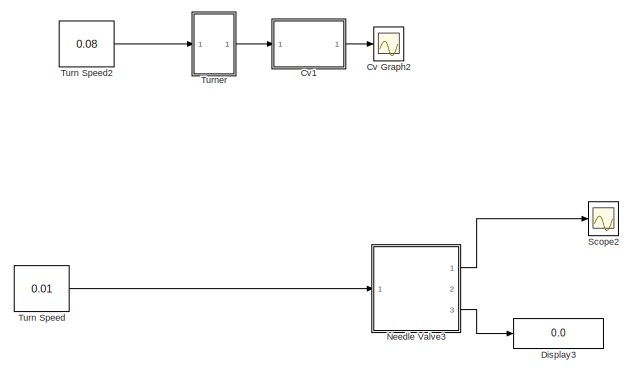
[diagram: root canvas - part 1/3, top center region]
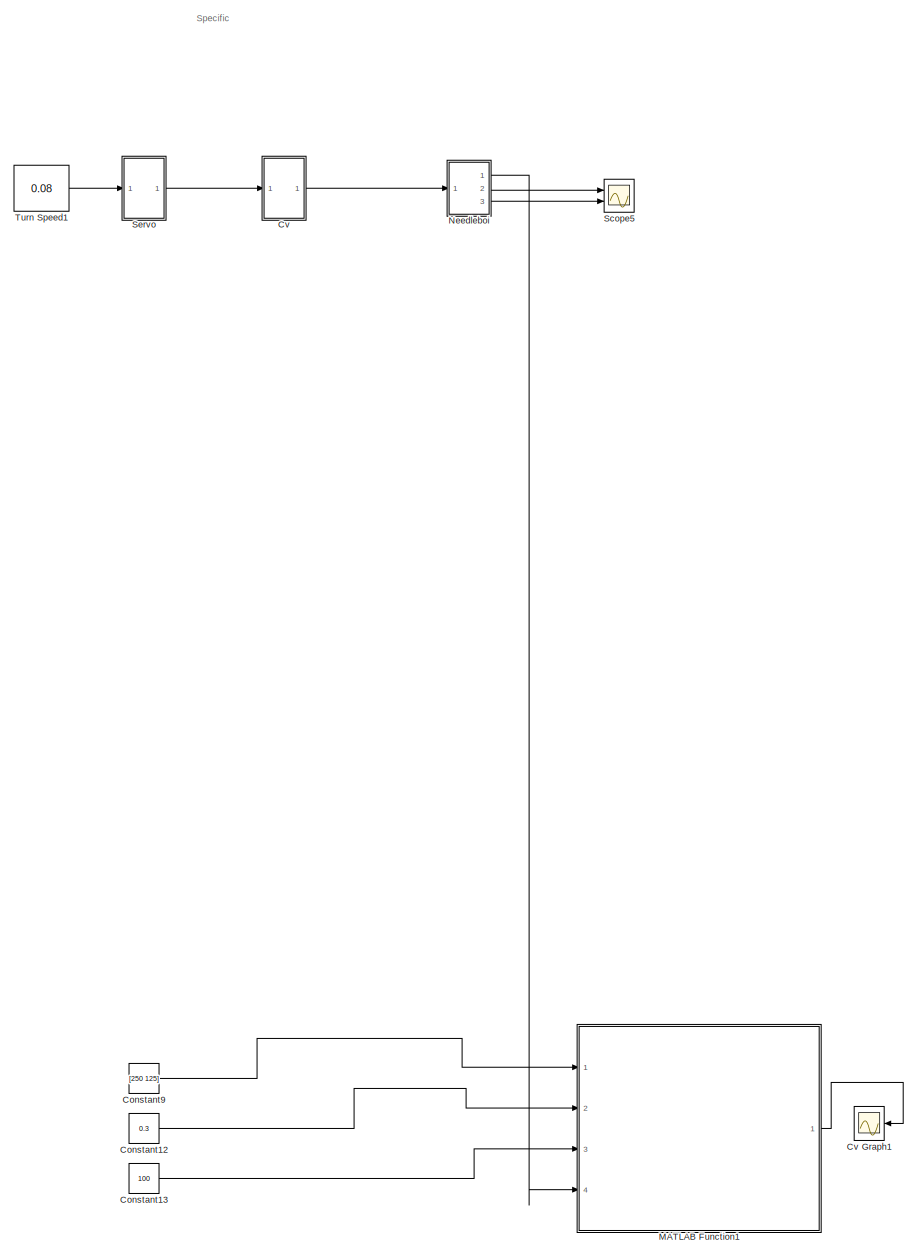
[diagram: root canvas - part 2/3, bottom left region]
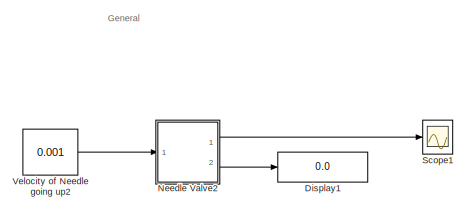
[diagram: root canvas - part 3/3, middle right region]
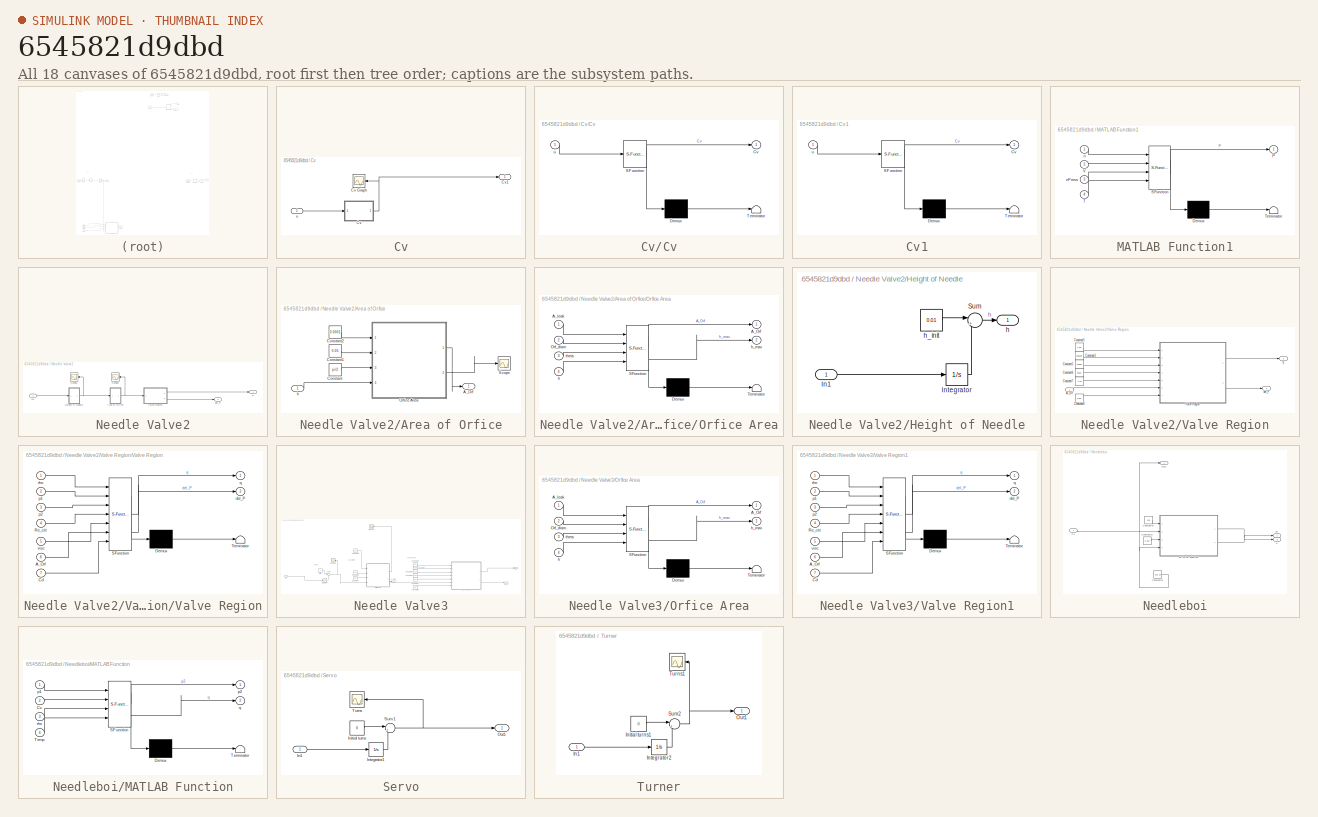
[diagram: thumbnail index - all 18 canvases of the model, root first then tree order]
MODEL slx_6545821d9dbd
KIND model
CONFIG AbsTol = auto
CONFIG EnableMultiTasking = off
CONFIG FixedStep = auto
CONFIG MaxStep = auto
CONFIG MinStep = auto
CONFIG RelTol = 1e-3
CONFIG SampleTimeConstraint = Unconstrained
CONFIG Solver = VariableStepAuto
CONFIG SolverName = VariableStepAuto
CONFIG StartTime = 0.0
CONFIG StopTime = 100
BLOCK [Constant] Constant12
  Commented = on
  Value = 0.3
BLOCK [Constant] Constant13
  Commented = on
  Value = 100
BLOCK [Constant] Constant9
  Commented = on
  Value = [250 125]
BLOCK [SubSystem] Cv
  Ports = [1, 1]
  RequestExecContextInheritance = off
BLOCK [Scope] Cv Graph1
  Commented = on
  Floating = off
  NumInputPorts = 1
  Ports = [1]
  ScopeSpecificationString = Simulink.scopes.TimeScopeBlockCfg('CurrentConfiguration', extmgr.ConfigurationSet(extmgr.Configuration('Core','General UI',true),extmgr.Configuration('Core','Source UI',true),extmgr.Configuration('Sources','WiredSimulink',true,'DataLoggingVariableName','ScopeData5'),extmgr.Configuration('Visuals','Time Domain',true,'SerializedDisplays',{struct('MinYLimReal','-0.99962','MaxYLimReal','8.99656','YLab...<+1363ch>
BLOCK [Scope] Cv Graph2
  Commented = on
  Floating = off
  NumInputPorts = 1
  Ports = [1]
  ScopeSpecificationString = Simulink.scopes.TimeScopeBlockCfg('CurrentConfiguration', extmgr.ConfigurationSet(extmgr.Configuration('Core','General UI',true),extmgr.Configuration('Core','Source UI',true),extmgr.Configuration('Sources','WiredSimulink',true,'DataLoggingVariableName','ScopeData7'),extmgr.Configuration('Visuals','Time Domain',true,'SerializedDisplays',{struct('MinYLimReal','-0.99962','MaxYLimReal','8.99656','YLab...<+1363ch>
BLOCK [SubSystem] Cv/Cv
  ErrorFcn = Stateflow.Translate.translate
  PermitHierarchicalResolution = ExplicitOnly
  Ports = [1, 1]
  RequestExecContextInheritance = off
  SFBlockType = MATLAB Function
  TreatAsAtomicUnit = on
BLOCK [Scope] Cv/Cv Graph
  Floating = off
  NumInputPorts = 1
  Ports = [1]
  ScopeSpecificationString = Simulink.scopes.TimeScopeBlockCfg('CurrentConfiguration', extmgr.ConfigurationSet(extmgr.Configuration('Core','General UI',true),extmgr.Configuration('Core','Source UI',true),extmgr.Configuration('Sources','WiredSimulink',true,'DataLoggingVariableName','ScopeData3'),extmgr.Configuration('Visuals','Time Domain',true,'SerializedDisplays',{struct('MinYLimReal','-0.096','MaxYLimReal','0.86398','YLabel...<+1357ch>
BLOCK [Demux] Cv/Cv/ Demux 
  Outputs = 1
  Ports = [1, 1]
BLOCK [S-Function] Cv/Cv/ SFunction 
  EnableBusSupport = on
  FunctionName = sf_sfun
  PortCounts = [1 2]
  Ports = [1, 2]
  SFcnIsStateOwnerBlock = off
  SFunctionDeploymentMode = off
  Tag = Stateflow S-Function 9
BLOCK [Terminator] Cv/Cv/ Terminator 
BLOCK [Outport] Cv/Cv/Cv
BLOCK [Inport] Cv/Cv/u
BLOCK [Outport] Cv/Cv1
BLOCK [Inport] Cv/u
BLOCK [SubSystem] Cv1
  Commented = on
  ErrorFcn = Stateflow.Translate.translate
  PermitHierarchicalResolution = ExplicitOnly
  Ports = [1, 1]
  RequestExecContextInheritance = off
  SFBlockType = MATLAB Function
  TreatAsAtomicUnit = on
BLOCK [Demux] Cv1/ Demux 
  Outputs = 1
  Ports = [1, 1]
BLOCK [S-Function] Cv1/ SFunction 
  EnableBusSupport = on
  FunctionName = sf_sfun
  PortCounts = [1 2]
  Ports = [1, 2]
  SFcnIsStateOwnerBlock = off
  SFunctionDeploymentMode = off
  Tag = Stateflow S-Function 1
BLOCK [Terminator] Cv1/ Terminator 
BLOCK [Outport] Cv1/Cv
BLOCK [Inport] Cv1/u
BLOCK [Display] Display1
  Decimation = 1
  Ports = [1]
BLOCK [Display] Display3
  Commented = on
  Decimation = 1
  Ports = [1]
BLOCK [SubSystem] MATLAB Function1
  Commented = on
  ErrorFcn = Stateflow.Translate.translate
  PermitHierarchicalResolution = ExplicitOnly
  Ports = [4, 1]
  RequestExecContextInheritance = off
  SFBlockType = MATLAB Function
  TreatAsAtomicUnit = on
BLOCK [Demux] MATLAB Function1/ Demux 
  Outputs = 1
  Ports = [1, 1]
BLOCK [S-Function] MATLAB Function1/ SFunction 
  EnableBusSupport = on
  FunctionName = sf_sfun
  PortCounts = [4 2]
  Ports = [4, 2]
  SFcnIsStateOwnerBlock = off
  SFunctionDeploymentMode = off
  Tag = Stateflow S-Function 11
BLOCK [Terminator] MATLAB Function1/ Terminator 
BLOCK [Outport] MATLAB Function1/P
BLOCK [Inport] MATLAB Function1/T
  Port = 4
BLOCK [Inport] MATLAB Function1/V
  Port = 2
BLOCK [Inport] MATLAB Function1/n
BLOCK [Inport] MATLAB Function1/nPress
  Port = 3
BLOCK [SubSystem] Needle Valve2
  Ports = [1, 2]
  RequestExecContextInheritance = off
BLOCK [SubSystem] Needle Valve2/Area of Orfice
  Ports = [1, 1]
  RequestExecContextInheritance = off
BLOCK [Outport] Needle Valve2/Area of Orfice/A_Orf
BLOCK [Constant] Needle Valve2/Area of Orfice/Constant
  Value = pi/2
BLOCK [Constant] Needle Valve2/Area of Orfice/Constant1
  Value = 0.05
BLOCK [Constant] Needle Valve2/Area of Orfice/Constant2
  Value = 0.0001
BLOCK [SubSystem] Needle Valve2/Area of Orfice/Orfice Area
  ErrorFcn = Stateflow.Translate.translate
  PermitHierarchicalResolution = ExplicitOnly
  Ports = [4, 2]
  RequestExecContextInheritance = off
  SFBlockType = MATLAB Function
  TreatAsAtomicUnit = on
BLOCK [Demux] Needle Valve2/Area of Orfice/Orfice Area/ Demux 
  Outputs = 1
  Ports = [1, 1]
BLOCK [S-Function] Needle Valve2/Area of Orfice/Orfice Area/ SFunction 
  EnableBusSupport = on
  FunctionName = sf_sfun
  PortCounts = [4 3]
  Ports = [4, 3]
  SFcnIsStateOwnerBlock = off
  SFunctionDeploymentMode = off
  Tag = Stateflow S-Function 5
BLOCK [Terminator] Needle Valve2/Area of Orfice/Orfice Area/ Terminator 
BLOCK [Outport] Needle Valve2/Area of Orfice/Orfice Area/A_Orf
BLOCK [Inport] Needle Valve2/Area of Orfice/Orfice Area/A_leak
BLOCK [Inport] Needle Valve2/Area of Orfice/Orfice Area/Orf_diam
  Port = 2
BLOCK [Inport] Needle Valve2/Area of Orfice/Orfice Area/h
  Port = 4
BLOCK [Outport] Needle Valve2/Area of Orfice/Orfice Area/h_max
  Port = 2
BLOCK [Inport] Needle Valve2/Area of Orfice/Orfice Area/theta
  Port = 3
BLOCK [Scope] Needle Valve2/Area of Orfice/Scope
  Floating = off
  NumInputPorts = 1
  Ports = [1]
  ScopeSpecificationString = Simulink.scopes.TimeScopeBlockCfg('CurrentConfiguration', extmgr.ConfigurationSet(extmgr.Configuration('Core','General UI',true),extmgr.Configuration('Core','Source UI',true),extmgr.Configuration('Sources','WiredSimulink',true,'DataLoggingVariableName','ScopeData1'),extmgr.Configuration('Visuals','Time Domain',true),extmgr.Configuration('Tools','Plot Navigation',true),extmgr.Configuration('Tools',...<+40ch>
BLOCK [Inport] Needle Valve2/Area of Orfice/h
BLOCK [SubSystem] Needle Valve2/Height of Needle
  Ports = [1, 1]
  RequestExecContextInheritance = off
BLOCK [Inport] Needle Valve2/Height of Needle/In1
BLOCK [Integrator] Needle Valve2/Height of Needle/Integrator
  Ports = [1, 1]
BLOCK [Sum] Needle Valve2/Height of Needle/Sum
  Inputs = |++
  Ports = [2, 1]
BLOCK [Outport] Needle Valve2/Height of Needle/h
BLOCK [Constant] Needle Valve2/Height of Needle/h_init
  Value = 0.01
BLOCK [Inport] Needle Valve2/In1
BLOCK [Scope] Needle Valve2/Scope1
  Floating = off
  NumInputPorts = 1
  Ports = [1]
  ScopeSpecificationString = Simulink.scopes.TimeScopeBlockCfg('CurrentConfiguration', extmgr.ConfigurationSet(extmgr.Configuration('Core','General UI',true),extmgr.Configuration('Core','Source UI',true),extmgr.Configuration('Sources','WiredSimulink',true,'DataLoggingVariableName','ScopeData1'),extmgr.Configuration('Visuals','Time Domain',true,'SerializedDisplays',{struct('MinYLimReal','-0.0025','MaxYLimReal','0.1225','YLabel...<+1369ch>
BLOCK [Scope] Needle Valve2/Scope2
  Floating = off
  NumInputPorts = 1
  Ports = [1]
  ScopeSpecificationString = Simulink.scopes.TimeScopeBlockCfg('CurrentConfiguration', extmgr.ConfigurationSet(extmgr.Configuration('Core','General UI',true),extmgr.Configuration('Core','Source UI',true),extmgr.Configuration('Sources','WiredSimulink',true,'DataLoggingVariableName','ScopeData2'),extmgr.Configuration('Visuals','Time Domain',true,'SerializedDisplays',{struct('MinYLimReal','0.00098','MaxYLimReal','0.00218','YLabe...<+1371ch>
BLOCK [SubSystem] Needle Valve2/Valve Region
  Ports = [1, 2]
  RequestExecContextInheritance = off
BLOCK [Inport] Needle Valve2/Valve Region/A_Orf
BLOCK [Constant] Needle Valve2/Valve Region/Constant3
  Value = 1.98
BLOCK [Constant] Needle Valve2/Valve Region/Constant4
  Value = 100000
BLOCK [Constant] Needle Valve2/Valve Region/Constant5
  Value = 20000
BLOCK [Constant] Needle Valve2/Valve Region/Constant6
  Value = 3500
BLOCK [Constant] Needle Valve2/Valve Region/Constant7
  Value = 1.61
BLOCK [Constant] Needle Valve2/Valve Region/Constant8
  Value = 0.65
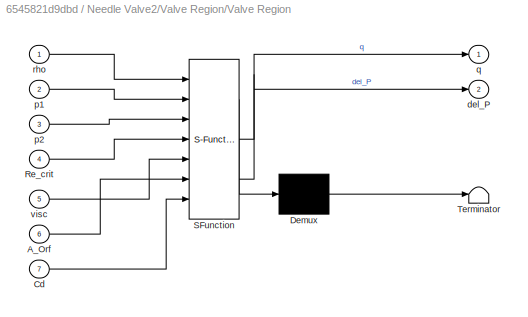
BLOCK [SubSystem] Needle Valve2/Valve Region/Valve Region
  ErrorFcn = Stateflow.Translate.translate
  PermitHierarchicalResolution = ExplicitOnly
  Ports = [7, 2]
  RequestExecContextInheritance = off
  SFBlockType = MATLAB Function
  TreatAsAtomicUnit = on
BLOCK [Demux] Needle Valve2/Valve Region/Valve Region/ Demux 
  Outputs = 1
  Ports = [1, 1]
BLOCK [S-Function] Needle Valve2/Valve Region/Valve Region/ SFunction 
  EnableBusSupport = on
  FunctionName = sf_sfun
  PortCounts = [7 3]
  Ports = [7, 3]
  SFcnIsStateOwnerBlock = off
  SFunctionDeploymentMode = off
  Tag = Stateflow S-Function 6
BLOCK [Terminator] Needle Valve2/Valve Region/Valve Region/ Terminator 
BLOCK [Inport] Needle Valve2/Valve Region/Valve Region/A_Orf
  Port = 6
BLOCK [Inport] Needle Valve2/Valve Region/Valve Region/Cd
  Port = 7
BLOCK [Inport] Needle Valve2/Valve Region/Valve Region/Re_crit
  Port = 4
BLOCK [Outport] Needle Valve2/Valve Region/Valve Region/del_P
  Port = 2
BLOCK [Inport] Needle Valve2/Valve Region/Valve Region/p1
  Port = 2
BLOCK [Inport] Needle Valve2/Valve Region/Valve Region/p2
  Port = 3
BLOCK [Outport] Needle Valve2/Valve Region/Valve Region/q
BLOCK [Inport] Needle Valve2/Valve Region/Valve Region/rho
BLOCK [Inport] Needle Valve2/Valve Region/Valve Region/visc
  Port = 5
BLOCK [Outport] Needle Valve2/Valve Region/del_P
  Port = 2
BLOCK [Outport] Needle Valve2/Valve Region/q
BLOCK [Outport] Needle Valve2/del_P
  Port = 2
BLOCK [Outport] Needle Valve2/q
BLOCK [SubSystem] Needle Valve3
  Ports = [1, 3]
  RequestExecContextInheritance = off
BLOCK [Constant] Needle Valve3/Constant
  Commented = on
  Value = pi/2
BLOCK [Constant] Needle Valve3/Constant1
  Commented = on
  Value = 0.05
BLOCK [Constant] Needle Valve3/Constant2
  Commented = on
  Value = 0.0001
BLOCK [Constant] Needle Valve3/Constant3
  Commented = on
  Value = 1.98
BLOCK [Constant] Needle Valve3/Constant4
  Commented = on
  Value = 100000
BLOCK [Constant] Needle Valve3/Constant5
  Commented = on
  Value = 20000
BLOCK [Constant] Needle Valve3/Constant6
  Commented = on
  Value = 3500
BLOCK [Constant] Needle Valve3/Constant7
  Commented = on
  Value = 1.61
BLOCK [Constant] Needle Valve3/Constant8
  Commented = on
  Value = 0.65
BLOCK [Inport] Needle Valve3/In1
BLOCK [Constant] Needle Valve3/Initial 
  Commented = on
  Value = 0
BLOCK [Integrator] Needle Valve3/Integrator
  Commented = on
  Ports = [1, 1]
BLOCK [SubSystem] Needle Valve3/Orfice Area
  Commented = on
  ErrorFcn = Stateflow.Translate.translate
  PermitHierarchicalResolution = ExplicitOnly
  Ports = [4, 2]
  RequestExecContextInheritance = off
  SFBlockType = MATLAB Function
  TreatAsAtomicUnit = on
BLOCK [Demux] Needle Valve3/Orfice Area/ Demux 
  Outputs = 1
  Ports = [1, 1]
BLOCK [S-Function] Needle Valve3/Orfice Area/ SFunction 
  EnableBusSupport = on
  FunctionName = sf_sfun
  PortCounts = [4 3]
  Ports = [4, 3]
  SFcnIsStateOwnerBlock = off
  SFunctionDeploymentMode = off
  Tag = Stateflow S-Function 7
BLOCK [Terminator] Needle Valve3/Orfice Area/ Terminator 
BLOCK [Outport] Needle Valve3/Orfice Area/A_Orf
BLOCK [Inport] Needle Valve3/Orfice Area/A_leak
BLOCK [Inport] Needle Valve3/Orfice Area/Orf_diam
  Port = 2
BLOCK [Inport] Needle Valve3/Orfice Area/h
  Port = 4
BLOCK [Outport] Needle Valve3/Orfice Area/h_max
  Port = 2
BLOCK [Inport] Needle Valve3/Orfice Area/theta
  Port = 3
BLOCK [Scope] Needle Valve3/Scope3
  Commented = on
  Floating = off
  NumInputPorts = 1
  Ports = [1]
  ScopeSpecificationString = Simulink.scopes.TimeScopeBlockCfg('CurrentConfiguration', extmgr.ConfigurationSet(extmgr.Configuration('Core','General UI',true),extmgr.Configuration('Core','Source UI',true),extmgr.Configuration('Sources','WiredSimulink',true,'DataLoggingVariableName','ScopeData1'),extmgr.Configuration('Visuals','Time Domain',true,'SerializedDisplays',{struct('MinYLimReal','0.00088','MaxYLimReal','0.00213','YLabe...<+1358ch>
BLOCK [Scope] Needle Valve3/Scope4
  Commented = on
  Floating = off
  NumInputPorts = 1
  Ports = [1]
  ScopeSpecificationString = Simulink.scopes.TimeScopeBlockCfg('CurrentConfiguration', extmgr.ConfigurationSet(extmgr.Configuration('Core','General UI',true),extmgr.Configuration('Core','Source UI',true),extmgr.Configuration('Sources','WiredSimulink',true,'DataLoggingVariableName','ScopeData2'),extmgr.Configuration('Visuals','Time Domain',true,'SerializedDisplays',{struct('MinYLimReal','0.0002','MaxYLimReal','0.00033','YLabel...<+1364ch>
BLOCK [Sum] Needle Valve3/Sum
  Commented = on
  Inputs = |++
  Ports = [2, 1]
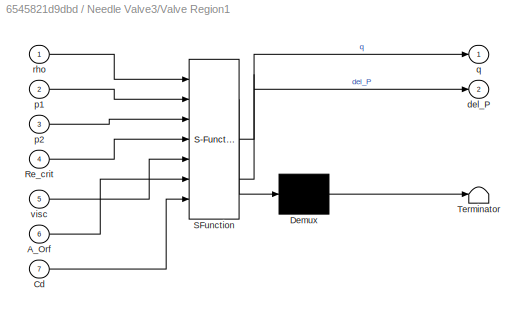
BLOCK [SubSystem] Needle Valve3/Valve Region1
  Commented = on
  ErrorFcn = Stateflow.Translate.translate
  PermitHierarchicalResolution = ExplicitOnly
  Ports = [7, 2]
  RequestExecContextInheritance = off
  SFBlockType = MATLAB Function
  TreatAsAtomicUnit = on
BLOCK [Demux] Needle Valve3/Valve Region1/ Demux 
  Outputs = 1
  Ports = [1, 1]
BLOCK [S-Function] Needle Valve3/Valve Region1/ SFunction 
  EnableBusSupport = on
  FunctionName = sf_sfun
  PortCounts = [7 3]
  Ports = [7, 3]
  SFcnIsStateOwnerBlock = off
  SFunctionDeploymentMode = off
  Tag = Stateflow S-Function 8
BLOCK [Terminator] Needle Valve3/Valve Region1/ Terminator 
BLOCK [Inport] Needle Valve3/Valve Region1/A_Orf
  Port = 6
BLOCK [Inport] Needle Valve3/Valve Region1/Cd
  Port = 7
BLOCK [Inport] Needle Valve3/Valve Region1/Re_crit
  Port = 4
BLOCK [Outport] Needle Valve3/Valve Region1/del_P
  Port = 2
BLOCK [Inport] Needle Valve3/Valve Region1/p1
  Port = 2
BLOCK [Inport] Needle Valve3/Valve Region1/p2
  Port = 3
BLOCK [Outport] Needle Valve3/Valve Region1/q
BLOCK [Inport] Needle Valve3/Valve Region1/rho
BLOCK [Inport] Needle Valve3/Valve Region1/visc
  Port = 5
BLOCK [Outport] Needle Valve3/del_P
  Port = 3
BLOCK [Outport] Needle Valve3/h_max
  Port = 2
BLOCK [Outport] Needle Valve3/q
BLOCK [SubSystem] Needleboi
  Ports = [1, 3]
  RequestExecContextInheritance = off
BLOCK [Constant] Needleboi/Constant10
  Value = 0.967
BLOCK [Constant] Needleboi/Constant11
  Value = 310.15
BLOCK [Constant] Needleboi/Constant14
  Value = 100
BLOCK [Inport] Needleboi/Cv
BLOCK [SubSystem] Needleboi/MATLAB Function
  ErrorFcn = Stateflow.Translate.translate
  PermitHierarchicalResolution = ExplicitOnly
  Ports = [4, 2]
  RequestExecContextInheritance = off
  SFBlockType = MATLAB Function
  TreatAsAtomicUnit = on
BLOCK [Demux] Needleboi/MATLAB Function/ Demux 
  Outputs = 1
  Ports = [1, 1]
BLOCK [S-Function] Needleboi/MATLAB Function/ SFunction 
  EnableBusSupport = on
  FunctionName = sf_sfun
  PortCounts = [4 3]
  Ports = [4, 3]
  SFcnIsStateOwnerBlock = off
  SFunctionDeploymentMode = off
  Tag = Stateflow S-Function 10
BLOCK [Terminator] Needleboi/MATLAB Function/ Terminator 
BLOCK [Inport] Needleboi/MATLAB Function/Cv
  Port = 2
BLOCK [Inport] Needleboi/MATLAB Function/Temp
  Port = 4
BLOCK [Inport] Needleboi/MATLAB Function/p1
BLOCK [Outport] Needleboi/MATLAB Function/p2
BLOCK [Outport] Needleboi/MATLAB Function/q
  Port = 2
BLOCK [Inport] Needleboi/MATLAB Function/rho
  Port = 3
BLOCK [Outport] Needleboi/Out1
BLOCK [Outport] Needleboi/p2
  Port = 2
BLOCK [Outport] Needleboi/q
  Port = 3
BLOCK [Scope] Scope1
  Floating = off
  NumInputPorts = 1
  Ports = [1]
  ScopeSpecificationString = Simulink.scopes.TimeScopeBlockCfg('CurrentConfiguration', extmgr.ConfigurationSet(extmgr.Configuration('Core','General UI',true),extmgr.Configuration('Core','Source UI',true),extmgr.Configuration('Sources','WiredSimulink',true,'DataLoggingVariableName','ScopeData2'),extmgr.Configuration('Visuals','Time Domain',true,'SerializedDisplays',{struct('MinYLimReal','0.0002','MaxYLimReal','0.00069','YLabel...<+1412ch>
BLOCK [Scope] Scope2
  Commented = on
  Floating = off
  NumInputPorts = 1
  Ports = [1]
  ScopeSpecificationString = Simulink.scopes.TimeScopeBlockCfg('CurrentConfiguration', extmgr.ConfigurationSet(extmgr.Configuration('Core','General UI',true),extmgr.Configuration('Core','Source UI',true),extmgr.Configuration('Sources','WiredSimulink',true,'DataLoggingVariableName','ScopeData1'),extmgr.Configuration('Visuals','Time Domain',true,'SerializedDisplays',{struct('MinYLimReal','0.0002','MaxYLimReal','0.00069','YLabel...<+1412ch>
BLOCK [Scope] Scope5
  Floating = off
  NumInputPorts = 2
  Ports = [2]
  ScopeSpecificationString = Simulink.scopes.TimeScopeBlockCfg('CurrentConfiguration', extmgr.ConfigurationSet(extmgr.Configuration('Core','General UI',true),extmgr.Configuration('Core','Source UI',true),extmgr.Configuration('Sources','WiredSimulink',true,'DataLoggingVariableName','ScopeData4'),extmgr.Configuration('Visuals','Time Domain',true,'SerializedDisplays',{struct('MinYLimReal','90.00000','MaxYLimReal','110.00000','YL...<+2047ch>
BLOCK [SubSystem] Servo
  Ports = [1, 1]
  RequestExecContextInheritance = off
BLOCK [Inport] Servo/In1
BLOCK [Constant] Servo/Initial turns
  Value = 0
BLOCK [Integrator] Servo/Integrator1
  Ports = [1, 1]
BLOCK [Outport] Servo/Out1
BLOCK [Sum] Servo/Sum1
  Inputs = |++
  Ports = [2, 1]
BLOCK [Scope] Servo/Turns
  Floating = off
  NumInputPorts = 1
  Ports = [1]
  ScopeSpecificationString = Simulink.scopes.TimeScopeBlockCfg('CurrentConfiguration', extmgr.ConfigurationSet(extmgr.Configuration('Core','General UI',true),extmgr.Configuration('Core','Source UI',true),extmgr.Configuration('Sources','WiredSimulink',true,'DataLoggingVariableName','ScopeData2'),extmgr.Configuration('Visuals','Time Domain',true,'SerializedDisplays',{struct('MinYLimReal','-0.99962','MaxYLimReal','8.99656','YLab...<+1363ch>
BLOCK [Constant] Turn Speed
  Commented = on
  Value = 0.01
  VectorParams1D = off
BLOCK [Constant] Turn Speed1
  Value = 0.08
  VectorParams1D = off
BLOCK [Constant] Turn Speed2
  Commented = on
  Value = 0.08
  VectorParams1D = off
BLOCK [SubSystem] Turner
  Ports = [1, 1]
  RequestExecContextInheritance = off
BLOCK [Inport] Turner/In1
BLOCK [Constant] Turner/Initial turns1
  Commented = on
  Value = 0
BLOCK [Integrator] Turner/Integrator2
  Commented = on
  Ports = [1, 1]
BLOCK [Outport] Turner/Out1
BLOCK [Sum] Turner/Sum2
  Commented = on
  Inputs = |++
  Ports = [2, 1]
BLOCK [Scope] Turner/Turns1
  Commented = on
  Floating = off
  NumInputPorts = 1
  Ports = [1]
  ScopeSpecificationString = Simulink.scopes.TimeScopeBlockCfg('CurrentConfiguration', extmgr.ConfigurationSet(extmgr.Configuration('Core','General UI',true),extmgr.Configuration('Core','Source UI',true),extmgr.Configuration('Sources','WiredSimulink',true,'DataLoggingVariableName','ScopeData6'),extmgr.Configuration('Visuals','Time Domain',true,'SerializedDisplays',{struct('MinYLimReal','-1.00000','MaxYLimReal','9.00000','YLab...<+1363ch>
BLOCK [Constant] Velocity of Needle going up2
  Value = 0.001
  VectorParams1D = off
ANNOTATION (root): General
ANNOTATION (root): Specific
ANNOTATION Needle Valve3: Area of Orfice
ANNOTATION Needle Valve3: Turner
ANNOTATION Needle Valve3: Valve Region
LINE Constant12:1 -> MATLAB Function1:2
LINE Constant13:1 -> MATLAB Function1:3
LINE Constant9:1 -> MATLAB Function1:1
NET Cv/Cv:1 -> Cv/Cv Graph:1, Cv/Cv1:1
LINE Cv/u:1 -> Cv/Cv:1
LINE Cv1:1 -> Cv Graph2:1
LINE Cv:1 -> Needleboi:1
LINE MATLAB Function1:1 -> Cv Graph1:1
LINE Needle Valve2/Area of Orfice/Constant1:1 -> Needle Valve2/Area of Orfice/Orfice Area:2
LINE Needle Valve2/Area of Orfice/Constant2:1 -> Needle Valve2/Area of Orfice/Orfice Area:1
LINE Needle Valve2/Area of Orfice/Constant:1 -> Needle Valve2/Area of Orfice/Orfice Area:3
LINE Needle Valve2/Area of Orfice/Orfice Area:1 -> Needle Valve2/Area of Orfice/A_Orf:1
LINE Needle Valve2/Area of Orfice/Orfice Area:2 -> Needle Valve2/Area of Orfice/Scope:1
LINE Needle Valve2/Area of Orfice/h:1 -> Needle Valve2/Area of Orfice/Orfice Area:4
NET Needle Valve2/Area of Orfice:1 -> Needle Valve2/Scope2:1, Needle Valve2/Valve Region:1
LINE Needle Valve2/Height of Needle/In1:1 -> Needle Valve2/Height of Needle/Integrator:1
LINE Needle Valve2/Height of Needle/Integrator:1 -> Needle Valve2/Height of Needle/Sum:2
LINE Needle Valve2/Height of Needle/Sum:1 -> Needle Valve2/Height of Needle/h:1
LINE Needle Valve2/Height of Needle/h_init:1 -> Needle Valve2/Height of Needle/Sum:1
NET Needle Valve2/Height of Needle:1 -> Needle Valve2/Area of Orfice:1, Needle Valve2/Scope1:1
LINE Needle Valve2/In1:1 -> Needle Valve2/Height of Needle:1
LINE Needle Valve2/Valve Region/A_Orf:1 -> Needle Valve2/Valve Region/Valve Region:6
LINE Needle Valve2/Valve Region/Constant3:1 -> Needle Valve2/Valve Region/Valve Region:1
LINE Needle Valve2/Valve Region/Constant4:1 -> Needle Valve2/Valve Region/Valve Region:2
LINE Needle Valve2/Valve Region/Constant5:1 -> Needle Valve2/Valve Region/Valve Region:3
LINE Needle Valve2/Valve Region/Constant6:1 -> Needle Valve2/Valve Region/Valve Region:4
LINE Needle Valve2/Valve Region/Constant7:1 -> Needle Valve2/Valve Region/Valve Region:5
LINE Needle Valve2/Valve Region/Constant8:1 -> Needle Valve2/Valve Region/Valve Region:7
LINE Needle Valve2/Valve Region/Valve Region:1 -> Needle Valve2/Valve Region/q:1
LINE Needle Valve2/Valve Region/Valve Region:2 -> Needle Valve2/Valve Region/del_P:1
LINE Needle Valve2/Valve Region:1 -> Needle Valve2/q:1
LINE Needle Valve2/Valve Region:2 -> Needle Valve2/del_P:1
LINE Needle Valve2:1 -> Scope1:1
LINE Needle Valve2:2 -> Display1:1
LINE Needle Valve3/Constant1:1 -> Needle Valve3/Orfice Area:2
LINE Needle Valve3/Constant2:1 -> Needle Valve3/Orfice Area:1
LINE Needle Valve3/Constant3:1 -> Needle Valve3/Valve Region1:1
LINE Needle Valve3/Constant4:1 -> Needle Valve3/Valve Region1:2
LINE Needle Valve3/Constant5:1 -> Needle Valve3/Valve Region1:3
LINE Needle Valve3/Constant6:1 -> Needle Valve3/Valve Region1:4
LINE Needle Valve3/Constant7:1 -> Needle Valve3/Valve Region1:5
LINE Needle Valve3/Constant8:1 -> Needle Valve3/Valve Region1:7
LINE Needle Valve3/Constant:1 -> Needle Valve3/Orfice Area:3
LINE Needle Valve3/In1:1 -> Needle Valve3/Integrator:1
LINE Needle Valve3/Initial :1 -> Needle Valve3/Sum:1
LINE Needle Valve3/Integrator:1 -> Needle Valve3/Sum:2
NET Needle Valve3/Orfice Area:1 -> Needle Valve3/Scope4:1, Needle Valve3/Valve Region1:6
LINE Needle Valve3/Orfice Area:2 -> Needle Valve3/h_max:1
NET Needle Valve3/Sum:1 -> Needle Valve3/Orfice Area:4, Needle Valve3/Scope3:1
LINE Needle Valve3/Valve Region1:1 -> Needle Valve3/q:1
LINE Needle Valve3/Valve Region1:2 -> Needle Valve3/del_P:1
LINE Needle Valve3:1 -> Scope2:1
LINE Needle Valve3:3 -> Display3:1
LINE Needleboi/Constant10:1 -> Needleboi/MATLAB Function:3
NET Needleboi/Constant11:1 -> Needleboi/MATLAB Function:4, Needleboi/Out1:1
LINE Needleboi/Constant14:1 -> Needleboi/MATLAB Function:1
LINE Needleboi/Cv:1 -> Needleboi/MATLAB Function:2
LINE Needleboi/MATLAB Function:1 -> Needleboi/p2:1
LINE Needleboi/MATLAB Function:2 -> Needleboi/q:1
LINE Needleboi:1 -> MATLAB Function1:4
LINE Needleboi:2 -> Scope5:1
LINE Needleboi:3 -> Scope5:2
LINE Servo/In1:1 -> Servo/Integrator1:1
LINE Servo/Initial turns:1 -> Servo/Sum1:1
LINE Servo/Integrator1:1 -> Servo/Sum1:2
NET Servo/Sum1:1 -> Servo/Out1:1, Servo/Turns:1
LINE Servo:1 -> Cv:1
LINE Turn Speed1:1 -> Servo:1
LINE Turn Speed2:1 -> Turner:1
LINE Turn Speed:1 -> Needle Valve3:1
LINE Turner/In1:1 -> Turner/Integrator2:1
LINE Turner/Initial turns1:1 -> Turner/Sum2:1
LINE Turner/Integrator2:1 -> Turner/Sum2:2
NET Turner/Sum2:1 -> Turner/Out1:1, Turner/Turns1:1
LINE Turner:1 -> Cv1:1
LINE Velocity of Needle going up2:1 -> Needle Valve2:1
note: NET lines group one-source signal fan-out (src -> all destinations, sorted); 1:1 wires keep LINE
CHART Cv1 states=1 transitions=1
  STATE_LABEL 'eML_blk_kernel()'
  STATE_LABEL 'SCRIPT:\nfunction Cv = Cvcalc(u)\nif (u<6)\n    Cv = u/20;\nelseif(u>6&&u<9)\nCv=((1.1169*(u-5.95)^2))/10+0.3;\nelse\n  Cv=0;\n    \nend\n\n    \n'
CHART Needle Valve2/Area of Orfice/Orfice Area states=1 transitions=1
  STATE_LABEL 'eML_blk_kernel()'
  STATE_LABEL 'SCRIPT:\nfunction [A_Orf, h_max] = OrficeArea(A_leak, Orf_diam, theta, h)\nh_max=(Orf_diam*(1-sqrt(1-cos(theta/2))))/sin(theta);\n\nif (h<=0)\n    A_Orf= A_leak;\nelseif (h>0) && (h<h_max)\n    A_Orf=(pi*(Orf_diam-(h*sin(theta/2)*cos(theta/2)))*h*sin(theta/2))+A_leak;\nelseif (h>h_max)\n    A_Orf=(pi*(Orf_diam)^2/4)+A_leak;\nelse\n    A_Orf=(pi*(Orf_diam)^2/4)+A_leak;\nend\n\n%A_Orf=(pi*(Orf_diam)^2/4)+A_leak;'
CHART Needle Valve2/Valve Region/Valve Region states=1 transitions=1
  STATE_LABEL 'eML_blk_kernel()'
  STATE_LABEL 'SCRIPT:\nfunction[q, del_P] = NeedleValve(rho,p1,p2, Re_crit, visc,A_Orf,Cd)\n% theta= angle of tip of needle assuming 90 initially later can be created\n% as workspace variable\n%h_init = initial height of needle (not 0 prolly for all practical purposes)\n%Orf_diam is the diameter of the orfice\n%Re_crit is the critical reynolds number\n%P_minT is the pressure just before turbulent flow\n%q is the mass f...<+221ch>'
CHART Needle Valve3/Orfice Area states=1 transitions=1
  STATE_LABEL 'eML_blk_kernel()'
  STATE_LABEL 'SCRIPT:\nfunction [A_Orf, h_max] = OrficeArea(A_leak, Orf_diam, theta, h)\nh_max=(Orf_diam*(1-sqrt(1-cos(theta/2))))/sin(theta);\n\nif (h<=0)\n    A_Orf= A_leak;\nelseif (h>0) && (h<h_max)\n    A_Orf=(pi*(Orf_diam-(h*sin(theta/2)*cos(theta/2)))*h*sin(theta/2))+A_leak;\nelseif (h>h_max)\n    A_Orf=(pi*(Orf_diam)^2/4)+A_leak;\nelse\n    A_Orf=(pi*(Orf_diam)^2/4)+A_leak;\nend\n\n%A_Orf=(pi*(Orf_diam)^2/4)+A_leak;'
CHART Needle Valve3/Valve Region1 states=1 transitions=1
  STATE_LABEL 'eML_blk_kernel()'
  STATE_LABEL 'SCRIPT:\nfunction[q, del_P] = NeedleValve(rho,p1,p2, Re_crit, visc,A_Orf,Cd)\n% theta= angle of tip of needle assuming 90 initially later can be created\n% as workspace variable\n%h_init = initial height of needle (not 0 prolly for all practical purposes)\n%Orf_diam is the diameter of the orfice\n%Re_crit is the critical reynolds number\n%q is the mass flow rate\n%visc = fluid kinematic viscosity\n%del_P i...<+170ch>'
CHART Cv/Cv states=1 transitions=1
  STATE_LABEL 'eML_blk_kernel()'
  STATE_LABEL 'SCRIPT:\nfunction Cv = Cvcalc(u)\nif (u<6)\n    Cv = u/20;\nelseif(u>6&&u<9)\nCv=((1.1169*(u-5.95)^2))/10+0.3;\nelse\n  Cv=0;\n    \nend\n\n    \n'
CHART Needleboi/MATLAB Function states=1 transitions=1
  STATE_LABEL 'eML_blk_kernel()'
  STATE_LABEL 'SCRIPT:\nfunction [p2,q] = Needleboi(p1,Cv,rho,Temp)\n\ndel_p=0;\n\np2=del_p+p1;\ndel_p=p1-p2;\n\n\nif (p2>0.5*p1)\n    q=1*Cv*p1*(1-(2*del_p)/(3*p1))*sqrt(del_p/(p1*rho*Temp));\n    \nelse\n    q=1*Cv*p1*sqrt(1/(rho*Temp));\nend'
CHART MATLAB Function1 states=1 transitions=1
  STATE_LABEL 'eML_blk_kernel()'
  STATE_LABEL 'SCRIPT:\nfunction P  = N20Blowdown1_B(n, V, nPress, T)\n\n\nQ1 = 2.781;    % molar specific volume of liquid N2O [m^3/kmol] coefficients\nQ2 = 0.27244;\nQ3 = 309.57;\nQ4 = 0.2882;\n\nR  = 8314;      %Universal gas constant (J/kmol*K).\n\n% Calculate thermodynamic parameters as functions of temperature:\nVhat_l      = Q2^(1 + (1 - T/Q3)^Q4)/Q1;                    %Molar specific vol. of liq. N2O [m^3/kmol]\n\n%S...<+96ch>'
CHART  states=0 transitions=0
CHART  states=0 transitions=0
CHART  states=0 transitions=0
CHART  states=0 transitions=0
CHART  states=0 transitions=0
CHART  states=0 transitions=0
CHART  states=0 transitions=0
CHART  states=0 transitions=0
